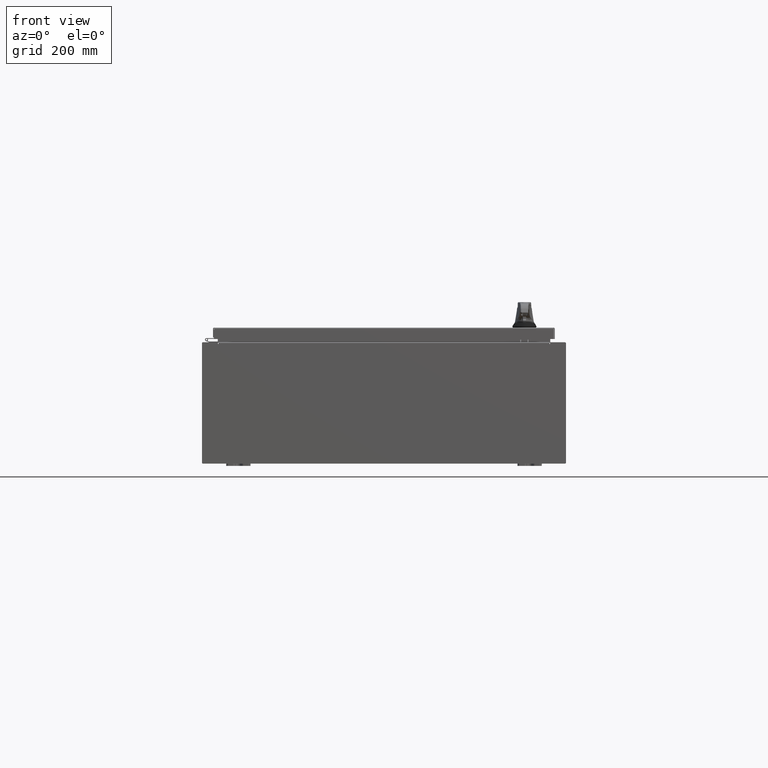
[diagram: clean part render]
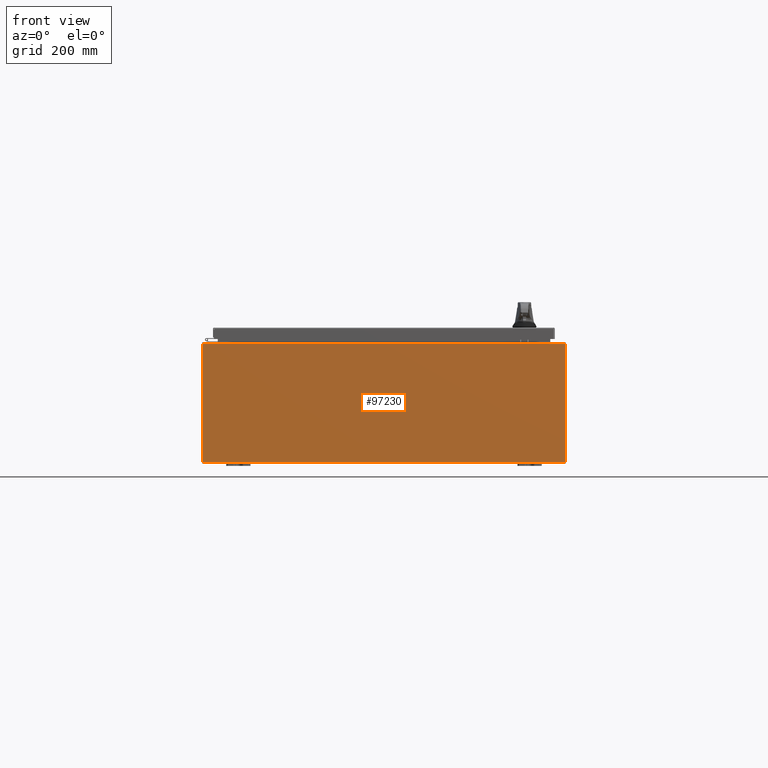
[diagram: same view with one face highlighted and labeled with its STEP entity id]
A machine part, front view. The second image highlights one B-rep face of the part: STEP entity #97230.
In plain terms, the highlighted planar face has unit normal (-0, 1, -0).
Its self-contained STEP definition (entity closure, byte-faithful):
#692 = CARTESIAN_POINT ( 'NONE',  ( -13.63720000000000000, -0.0000000000000000000, 4.874950000000000100 ) ) ;
#2129 = CARTESIAN_POINT ( 'NONE',  ( 13.63719999999999800, 0.0000000000000000000, 4.874950000000000100 ) ) ;
#2959 = VERTEX_POINT ( 'NONE', #60562 ) ;
#5397 = LINE ( 'NONE', #96153, #84334 ) ;
#5944 = DIRECTION ( 'NONE',  ( -4.340572780400004900E-014, 0.0000000000000000000, -1.000000000000000000 ) ) ;
#6542 = CARTESIAN_POINT ( 'NONE',  ( -14.92530000000000200, 0.0000000000000000000, 4.925300000000000000 ) ) ;
#9827 = DIRECTION ( 'NONE',  ( -0.0000000000000000000, 1.000000000000000000, -0.0000000000000000000 ) ) ;
#10117 = EDGE_CURVE ( 'NONE', #118793, #2959, #80398, .T. ) ;
#10561 = DIRECTION ( 'NONE',  ( 0.0000000000000000000, 0.0000000000000000000, -1.000000000000000000 ) ) ;
#14302 = CARTESIAN_POINT ( 'NONE',  ( -14.92530000000000200, 0.0000000000000000000, 4.925300000000000000 ) ) ;
#14736 = LINE ( 'NONE', #82545, #120961 ) ;
#15327 = EDGE_CURVE ( 'NONE', #132068, #98814, #43974, .T. ) ;
#16386 = CARTESIAN_POINT ( 'NONE',  ( -13.67455000000000000, 0.0000000000000000000, 4.874950000000000100 ) ) ;
#17162 = LINE ( 'NONE', #81869, #20363 ) ;
#20363 = VECTOR ( 'NONE', #30460, 39.37007874015748100 ) ;
#22018 = ORIENTED_EDGE ( 'NONE', *, *, #74510, .F. ) ;
#22257 = ORIENTED_EDGE ( 'NONE', *, *, #107792, .F. ) ;
#22609 = ORIENTED_EDGE ( 'NONE', *, *, #52222, .T. ) ;
#26819 = CARTESIAN_POINT ( 'NONE',  ( 13.63719999999999800, 0.0000000000000000000, 4.912300000000000100 ) ) ;
#27209 = LINE ( 'NONE', #92496, #51302 ) ;
#27854 = VECTOR ( 'NONE', #10561, 39.37007874015748100 ) ;
#30460 = DIRECTION ( 'NONE',  ( 1.000000000000000000, 0.0000000000000000000, 0.0000000000000000000 ) ) ;
#30790 = DIRECTION ( 'NONE',  ( -1.000000000000000000, -0.0000000000000000000, -0.0000000000000000000 ) ) ;
#30816 = VERTEX_POINT ( 'NONE', #78440 ) ;
#32645 = EDGE_CURVE ( 'NONE', #35512, #30816, #5397, .T. ) ;
#35512 = VERTEX_POINT ( 'NONE', #16386 ) ;
#38615 = ORIENTED_EDGE ( 'NONE', *, *, #10117, .F. ) ;
#40475 = LINE ( 'NONE', #44965, #92090 ) ;
#40538 = EDGE_CURVE ( 'NONE', #118793, #81005, #17162, .T. ) ;
#40779 = VECTOR ( 'NONE', #62226, 39.37007874015748100 ) ;
#40823 = ORIENTED_EDGE ( 'NONE', *, *, #91999, .T. ) ;
#41476 = DIRECTION ( 'NONE',  ( 0.0000000000000000000, 0.0000000000000000000, -1.000000000000000000 ) ) ;
#42008 = CARTESIAN_POINT ( 'NONE',  ( 13.65587499999999800, 0.0000000000000000000, 4.874950000000000100 ) ) ;
#43472 = DIRECTION ( 'NONE',  ( 0.0000000000000000000, 0.0000000000000000000, 1.000000000000000000 ) ) ;
#43974 = LINE ( 'NONE', #6542, #98803 ) ;
#44690 = EDGE_LOOP ( 'NONE', ( #78303, #126305, #22257, #80953, #22018, #66246, #38615, #118072, #123334, #40823, #110877, #22609 ) ) ;
#44965 = CARTESIAN_POINT ( 'NONE',  ( -13.63720000000000400, -7.171100983368691200E-016, 4.912300000000000100 ) ) ;
#47416 = AXIS2_PLACEMENT_3D ( 'NONE', #42008, #114098, #52357 ) ;
#48144 = AXIS2_PLACEMENT_3D ( 'NONE', #113026, #51291, #123314 ) ;
#51291 = DIRECTION ( 'NONE',  ( 0.0000000000000000000, -1.000000000000000000, 0.0000000000000000000 ) ) ;
#51302 = VECTOR ( 'NONE', #30790, 39.37007874015748100 ) ;
#51817 = CARTESIAN_POINT ( 'NONE',  ( -14.92530000000000200, 0.0000000000000000000, 4.925300000000000000 ) ) ;
#52222 = EDGE_CURVE ( 'NONE', #98814, #30816, #122928, .T. ) ;
#52357 = DIRECTION ( 'NONE',  ( 0.0000000000000000000, 0.0000000000000000000, -1.000000000000000000 ) ) ;
#54043 = CIRCLE ( 'NONE', #71893, 0.01867499999999949400 ) ;
#55193 = LINE ( 'NONE', #82586, #27854 ) ;
#60562 = CARTESIAN_POINT ( 'NONE',  ( 13.67454999999999800, 0.0000000000000000000, 4.874950000000000100 ) ) ;
#62226 = DIRECTION ( 'NONE',  ( 1.000000000000000000, 0.0000000000000000000, 0.0000000000000000000 ) ) ;
#66246 = ORIENTED_EDGE ( 'NONE', *, *, #117591, .F. ) ;
#68579 = VERTEX_POINT ( 'NONE', #125398 ) ;
#71486 = CARTESIAN_POINT ( 'NONE',  ( -13.65587500000000000, 0.0000000000000000000, 4.874950000000000100 ) ) ;
#71661 = PLANE ( 'NONE',  #48144 ) ;
#71753 = CARTESIAN_POINT ( 'NONE',  ( 13.67455000000000000, 0.0000000000000000000, 4.925300000000000000 ) ) ;
#71893 = AXIS2_PLACEMENT_3D ( 'NONE', #71486, #9827, #81880 ) ;
#74510 = EDGE_CURVE ( 'NONE', #105784, #121510, #74763, .T. ) ;
#74763 = LINE ( 'NONE', #75664, #98850 ) ;
#75664 = CARTESIAN_POINT ( 'NONE',  ( 13.63719999999999800, 0.0000000000000000000, 0.0000000000000000000 ) ) ;
#75808 = CIRCLE ( 'NONE', #47416, 0.01867499999999949400 ) ;
#78303 = ORIENTED_EDGE ( 'NONE', *, *, #32645, .F. ) ;
#78440 = CARTESIAN_POINT ( 'NONE',  ( -13.67455000000000000, 0.0000000000000000000, 4.925300000000000000 ) ) ;
#78570 = DIRECTION ( 'NONE',  ( -0.0000000000000000000, -0.0000000000000000000, 1.000000000000000000 ) ) ;
#80398 = LINE ( 'NONE', #81084, #104550 ) ;
#80953 = ORIENTED_EDGE ( 'NONE', *, *, #107410, .T. ) ;
#81005 = VERTEX_POINT ( 'NONE', #101067 ) ;
#81084 = CARTESIAN_POINT ( 'NONE',  ( 13.67454999999978500, -0.0000000000000000000, -5.935537951421795000E-013 ) ) ;
#81122 = VERTEX_POINT ( 'NONE', #88762 ) ;
#81869 = CARTESIAN_POINT ( 'NONE',  ( -14.92530000000000200, 0.0000000000000000000, 4.925300000000000000 ) ) ;
#81880 = DIRECTION ( 'NONE',  ( 0.0000000000000000000, 0.0000000000000000000, -1.000000000000000000 ) ) ;
#82545 = CARTESIAN_POINT ( 'NONE',  ( -13.63720000000000000, -0.0000000000000000000, 0.0000000000000000000 ) ) ;
#82586 = CARTESIAN_POINT ( 'NONE',  ( 14.92529999999999800, 0.0000000000000000000, 4.925300000000000000 ) ) ;
#84334 = VECTOR ( 'NONE', #43472, 39.37007874015748100 ) ;
#86484 = DIRECTION ( 'NONE',  ( 1.000000000000000000, 0.0000000000000000000, 0.0000000000000000000 ) ) ;
#88762 = CARTESIAN_POINT ( 'NONE',  ( -13.63720000000000000, -7.171100983368691200E-016, 4.912300000000000100 ) ) ;
#91999 = EDGE_CURVE ( 'NONE', #68579, #132068, #27209, .T. ) ;
#92090 = VECTOR ( 'NONE', #86484, 39.37007874015748100 ) ;
#92496 = CARTESIAN_POINT ( 'NONE',  ( -14.92530000000000200, 0.0000000000000000000, -4.925300000000000000 ) ) ;
#95620 = VERTEX_POINT ( 'NONE', #692 ) ;
#96153 = CARTESIAN_POINT ( 'NONE',  ( -13.67455000000000000, -0.0000000000000000000, 0.0000000000000000000 ) ) ;
#97230 = ADVANCED_FACE ( 'NONE', ( #99073 ), #71661, .F. ) ;
#98803 = VECTOR ( 'NONE', #78570, 39.37007874015748100 ) ;
#98814 = VERTEX_POINT ( 'NONE', #14302 ) ;
#98850 = VECTOR ( 'NONE', #106696, 39.37007874015748100 ) ;
#99073 = FACE_OUTER_BOUND ( 'NONE', #44690, .T. ) ;
#101067 = CARTESIAN_POINT ( 'NONE',  ( 14.92529999999999800, 0.0000000000000000000, 4.925300000000000000 ) ) ;
#103445 = EDGE_CURVE ( 'NONE', #95620, #35512, #54043, .T. ) ;
#104550 = VECTOR ( 'NONE', #5944, 39.37007874015748100 ) ;
#105784 = VERTEX_POINT ( 'NONE', #2129 ) ;
#106043 = EDGE_CURVE ( 'NONE', #81005, #68579, #55193, .T. ) ;
#106696 = DIRECTION ( 'NONE',  ( 0.0000000000000000000, 0.0000000000000000000, 1.000000000000000000 ) ) ;
#107410 = EDGE_CURVE ( 'NONE', #81122, #121510, #40475, .T. ) ;
#107792 = EDGE_CURVE ( 'NONE', #81122, #95620, #14736, .T. ) ;
#110877 = ORIENTED_EDGE ( 'NONE', *, *, #15327, .T. ) ;
#113026 = CARTESIAN_POINT ( 'NONE',  ( 0.0000000000000000000, 0.0000000000000000000, 0.0000000000000000000 ) ) ;
#114098 = DIRECTION ( 'NONE',  ( -0.0000000000000000000, 1.000000000000000000, -0.0000000000000000000 ) ) ;
#117591 = EDGE_CURVE ( 'NONE', #2959, #105784, #75808, .T. ) ;
#118072 = ORIENTED_EDGE ( 'NONE', *, *, #40538, .T. ) ;
#118793 = VERTEX_POINT ( 'NONE', #71753 ) ;
#120961 = VECTOR ( 'NONE', #41476, 39.37007874015748100 ) ;
#121510 = VERTEX_POINT ( 'NONE', #26819 ) ;
#122928 = LINE ( 'NONE', #51817, #40779 ) ;
#123314 = DIRECTION ( 'NONE',  ( 0.0000000000000000000, -0.0000000000000000000, -1.000000000000000000 ) ) ;
#123334 = ORIENTED_EDGE ( 'NONE', *, *, #106043, .T. ) ;
#124374 = CARTESIAN_POINT ( 'NONE',  ( -14.92530000000000200, 0.0000000000000000000, -4.925300000000000000 ) ) ;
#125398 = CARTESIAN_POINT ( 'NONE',  ( 14.92529999999999800, 0.0000000000000000000, -4.925300000000000000 ) ) ;
#126305 = ORIENTED_EDGE ( 'NONE', *, *, #103445, .F. ) ;
#132068 = VERTEX_POINT ( 'NONE', #124374 ) ;